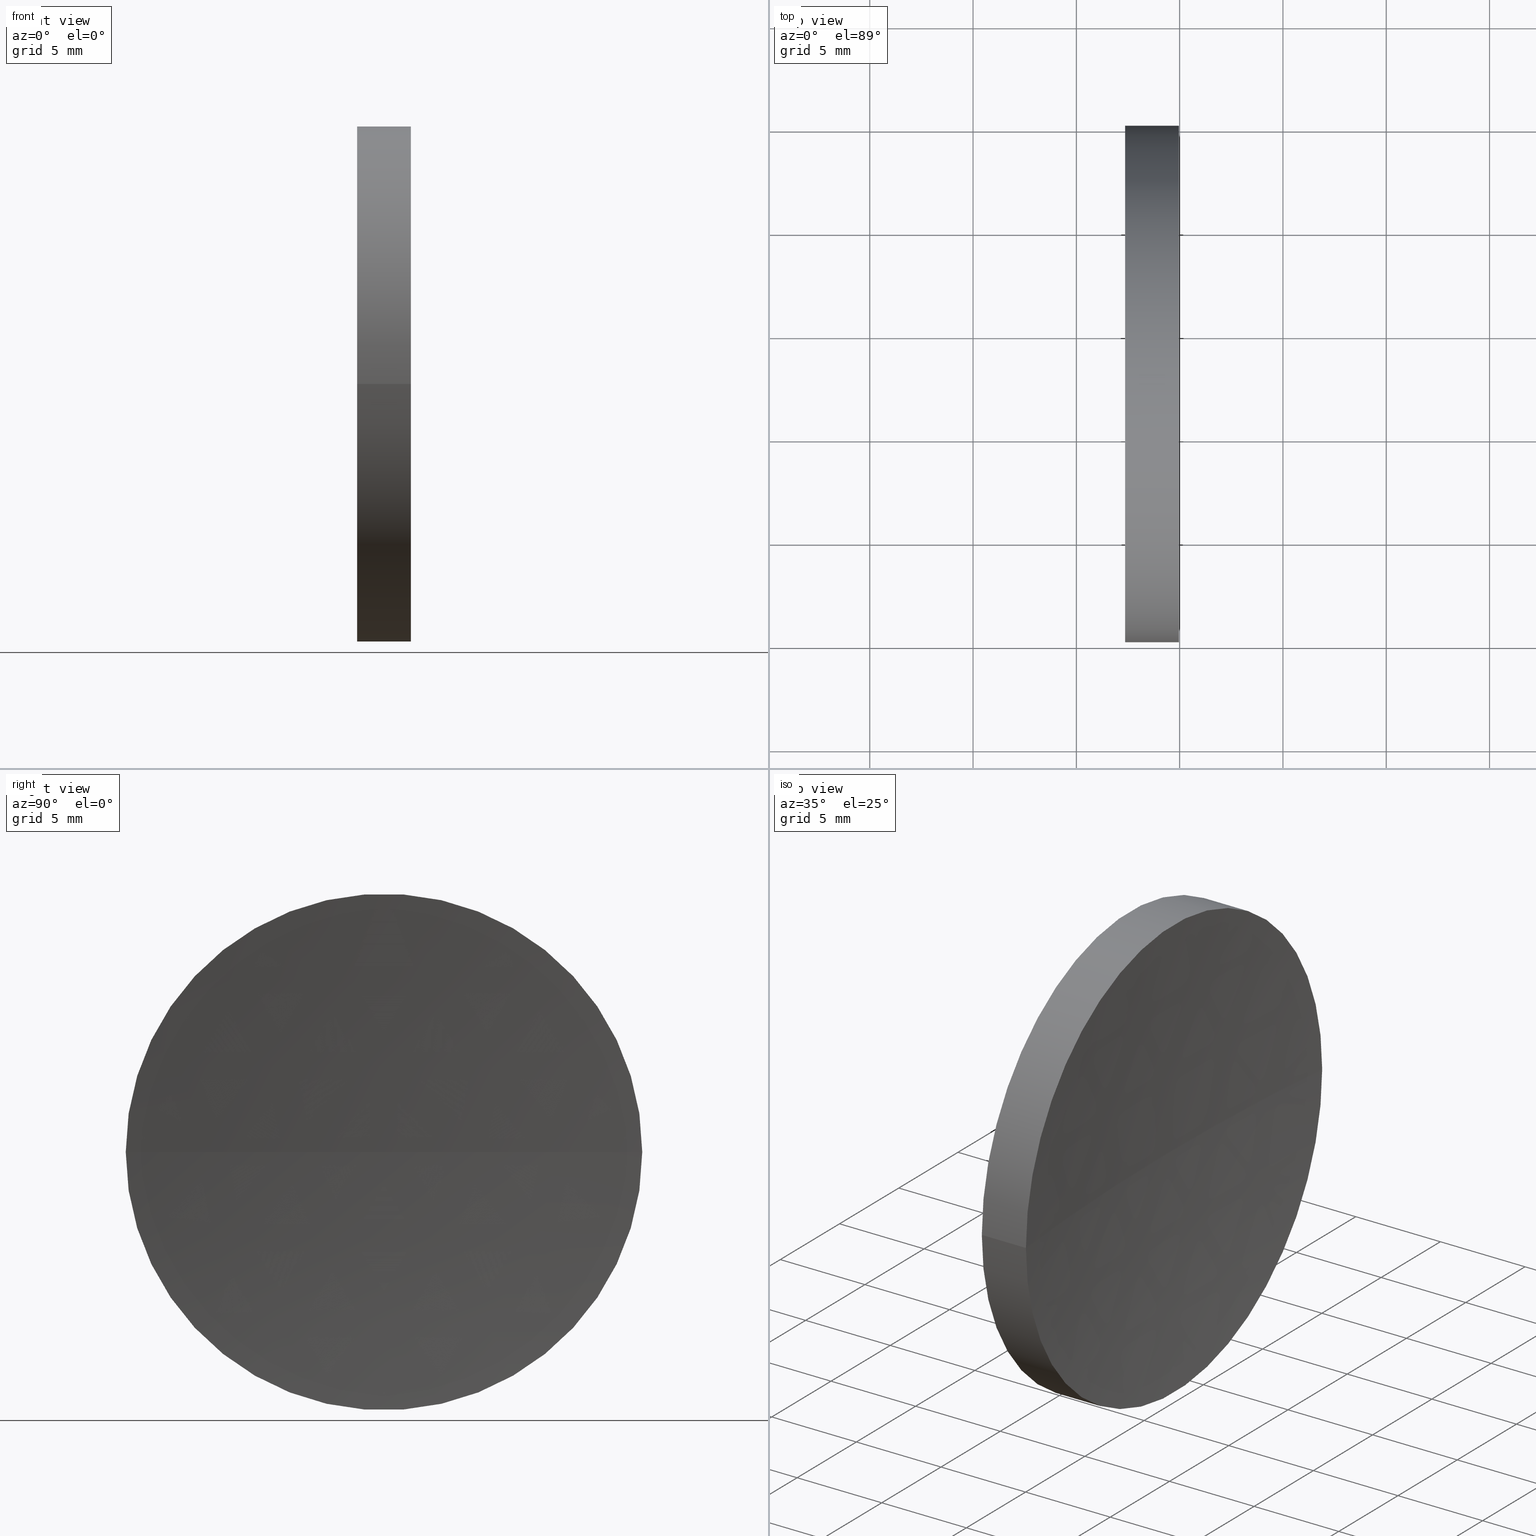
[diagram: canonical four-view strip — front | top / right | iso, engineering-drawing reading convention]
A machine part, canonical four-view strip (front | top / right | iso — engineering-drawing reading convention). The complete STEP part file that produces these views, byte-faithful:
ISO-10303-21;
HEADER;
FILE_DESCRIPTION (( 'STEP AP214' ),
    '1' );
FILE_NAME ('120159.STEP',
    '2019-06-20T07:46:00',
    ( '' ),
    ( '' ),
    'SwSTEP 2.0',
    'SolidWorks 2016',
    '' );
FILE_SCHEMA (( 'AUTOMOTIVE_DESIGN' ));
ENDSEC;

DATA;
#1 = ORIENTED_EDGE ( 'NONE', *, *, #129, .T. ) ;
#2 = APPLICATION_CONTEXT ( 'automotive_design' ) ;
#3 = CIRCLE ( 'NONE', #102, 129.1300000000000200 ) ;
#4 = DIRECTION ( 'NONE',  ( 1.000000000000000000, -7.636108817321419600E-016, 0.0000000000000000000 ) ) ;
#5 =( GEOMETRIC_REPRESENTATION_CONTEXT ( 3 ) GLOBAL_UNCERTAINTY_ASSIGNED_CONTEXT ( ( #85 ) ) GLOBAL_UNIT_ASSIGNED_CONTEXT ( ( #147, #136, #159 ) ) REPRESENTATION_CONTEXT ( 'NONE', 'WORKASPACE' ) );
#6 = DIRECTION ( 'NONE',  ( 7.636108817321419600E-016, 1.000000000000000000, 0.0000000000000000000 ) ) ;
#7 = DIRECTION ( 'NONE',  ( -5.551115123125782700E-016, -1.000000000000000000, 0.0000000000000000000 ) ) ;
#8 = ORIENTED_EDGE ( 'NONE', *, *, #110, .T. ) ;
#9 =( GEOMETRIC_REPRESENTATION_CONTEXT ( 3 ) GLOBAL_UNCERTAINTY_ASSIGNED_CONTEXT ( ( #64 ) ) GLOBAL_UNIT_ASSIGNED_CONTEXT ( ( #29, #127, #43 ) ) REPRESENTATION_CONTEXT ( 'NONE', 'WORKASPACE' ) );
#10 = VERTEX_POINT ( 'NONE', #50 ) ;
#11 = EDGE_LOOP ( 'NONE', ( #144, #137, #73, #92 ) ) ;
#12 = ADVANCED_BREP_SHAPE_REPRESENTATION ( '120159', ( #45, #139 ), #9 ) ;
#13 = EDGE_LOOP ( 'NONE', ( #113, #8 ) ) ;
#14 = EDGE_CURVE ( 'NONE', #10, #23, #54, .T. ) ;
#15 = DIRECTION ( 'NONE',  ( -1.000000000000000000, 7.636108817321419600E-016, -0.0000000000000000000 ) ) ;
#16 = FILL_AREA_STYLE_COLOUR ( '', #97 ) ;
#17 = AXIS2_PLACEMENT_3D ( 'NONE', #62, #158, #135 ) ;
#18 = CARTESIAN_POINT ( 'NONE',  ( 57.35819015802111700, 45.07872591329309100, 1.530808498934191900E-015 ) ) ;
#19 = CARTESIAN_POINT ( 'NONE',  ( 188.4881902802917500, 32.57872685537726200, 0.0000000000000000000 ) ) ;
#20 = COLOUR_RGB ( '',1.000000000000000000, 1.000000000000000000, 1.000000000000000000 ) ;
#21 =( LENGTH_UNIT ( ) NAMED_UNIT ( * ) SI_UNIT ( .MILLI., .METRE. ) );
#22 = SURFACE_STYLE_USAGE ( .BOTH. , #122 ) ;
#23 = VERTEX_POINT ( 'NONE', #33 ) ;
#24 = SPHERICAL_SURFACE ( 'NONE', #93, 129.1300000000000200 ) ;
#25 = CYLINDRICAL_SURFACE ( 'NONE', #91, 12.50000000000000000 ) ;
#26 = EDGE_LOOP ( 'NONE', ( #46, #161, #142 ) ) ;
#27 = PRODUCT_DEFINITION_FORMATION_WITH_SPECIFIED_SOURCE ( '�κ�', '', #57, .NOT_KNOWN. ) ;
#28 = EDGE_CURVE ( 'NONE', #23, #41, #80, .T. ) ;
#29 =( LENGTH_UNIT ( ) NAMED_UNIT ( * ) SI_UNIT ( .MILLI., .METRE. ) );
#30 = CIRCLE ( 'NONE', #17, 12.49999999999999600 ) ;
#31 = SURFACE_SIDE_STYLE ('',( #58 ) ) ;
#32 = CARTESIAN_POINT ( 'NONE',  ( 57.35819015802111000, 32.57872591329309800, 0.0000000000000000000 ) ) ;
#33 = CARTESIAN_POINT ( 'NONE',  ( 57.35819015802110200, 20.07872591329309800, 0.0000000000000000000 ) ) ;
#34 = DIRECTION ( 'NONE',  ( -5.551115123125782700E-016, -1.000000000000000000, 0.0000000000000000000 ) ) ;
#35 = ORIENTED_EDGE ( 'NONE', *, *, #42, .T. ) ;
#36 = STYLED_ITEM ( 'NONE', ( #72 ), #12 ) ;
#37 = EDGE_CURVE ( 'NONE', #149, #10, #95, .T. ) ;
#38 = ADVANCED_FACE ( 'NONE', ( #60 ), #24, .F. ) ;
#39 = FACE_OUTER_BOUND ( 'NONE', #13, .T. ) ;
#40 = ORIENTED_EDGE ( 'NONE', *, *, #14, .F. ) ;
#41 = VERTEX_POINT ( 'NONE', #18 ) ;
#42 = EDGE_CURVE ( 'NONE', #10, #149, #101, .T. ) ;
#43 =( NAMED_UNIT ( * ) SI_UNIT ( $, .STERADIAN. ) SOLID_ANGLE_UNIT ( ) );
#44 = APPLICATION_PROTOCOL_DEFINITION ( 'draft international standard', 'automotive_design', 1998, #156 ) ;
#45 = MANIFOLD_SOLID_BREP ( '��ת1', #143 ) ;
#46 = ORIENTED_EDGE ( 'NONE', *, *, #37, .F. ) ;
#47 = ORIENTED_EDGE ( 'NONE', *, *, #114, .F. ) ;
#48 = DIRECTION ( 'NONE',  ( -8.597715671224009600E-016, -1.000000000000000000, 0.0000000000000000000 ) ) ;
#49 = AXIS2_PLACEMENT_3D ( 'NONE', #79, #51, #7 ) ;
#50 = CARTESIAN_POINT ( 'NONE',  ( 59.96462464522185300, 20.07872685537733700, 0.0000000000000000000 ) ) ;
#51 = DIRECTION ( 'NONE',  ( -1.000000000000000000, 7.636108817321419600E-016, -0.0000000000000000000 ) ) ;
#52 = CARTESIAN_POINT ( 'NONE',  ( 55.00739462442118100, 32.57872591329309800, 0.0000000000000000000 ) ) ;
#53 = DIRECTION ( 'NONE',  ( -1.000000000000000000, 7.636108817321419600E-016, -0.0000000000000000000 ) ) ;
#54 = LINE ( 'NONE', #98, #106 ) ;
#55 = EDGE_CURVE ( 'NONE', #149, #41, #83, .T. ) ;
#56 = PRODUCT_RELATED_PRODUCT_CATEGORY ( 'part', '', ( #57 ) ) ;
#57 = PRODUCT ( '120159', '120159', '', ( #103 ) ) ;
#58 = SURFACE_STYLE_FILL_AREA ( #65 ) ;
#59 = CARTESIAN_POINT ( 'NONE',  ( 59.96462464522185300, 45.07872591329312000, 1.530808383562146000E-015 ) ) ;
#60 = FACE_OUTER_BOUND ( 'NONE', #87, .T. ) ;
#61 = APPLICATION_PROTOCOL_DEFINITION ( 'draft international standard', 'automotive_design', 1998, #2 ) ;
#62 = CARTESIAN_POINT ( 'NONE',  ( 57.35819015802111000, 32.57872591329309800, 0.0000000000000000000 ) ) ;
#63 = PRODUCT_DEFINITION ( 'δ֪', '', #27, #155 ) ;
#64 = UNCERTAINTY_MEASURE_WITH_UNIT (LENGTH_MEASURE( 1.000000000000000100E-005 ), #29, 'distance_accuracy_value', 'NONE');
#65 = FILL_AREA_STYLE ('',( #16 ) ) ;
#66 = PRODUCT_DEFINITION_SHAPE ( 'NONE', 'NONE',  #63 ) ;
#67 = DIRECTION ( 'NONE',  ( -1.000000000000000000, 7.636108817321419600E-016, -0.0000000000000000000 ) ) ;
#68 = CIRCLE ( 'NONE', #84, 129.1300000000000200 ) ;
#69 = DIRECTION ( 'NONE',  ( -1.000000000000000000, 7.636108817321419600E-016, -0.0000000000000000000 ) ) ;
#70 = ORIENTED_EDGE ( 'NONE', *, *, #28, .F. ) ;
#71 = AXIS2_PLACEMENT_3D ( 'NONE', #77, #4, #6 ) ;
#72 = PRESENTATION_STYLE_ASSIGNMENT (( #117 ) ) ;
#73 = ORIENTED_EDGE ( 'NONE', *, *, #14, .T. ) ;
#74 = AXIS2_PLACEMENT_3D ( 'NONE', #163, #69, #140 ) ;
#75 = FACE_OUTER_BOUND ( 'NONE', #26, .T. ) ;
#76 = CARTESIAN_POINT ( 'NONE',  ( 188.4881902802917500, 32.57872685537726200, 0.0000000000000000000 ) ) ;
#77 = CARTESIAN_POINT ( 'NONE',  ( 57.35819015802111000, 32.57872591329309100, 0.0000000000000000000 ) ) ;
#78 = AXIS2_PLACEMENT_3D ( 'NONE', #52, #164, #34 ) ;
#79 = CARTESIAN_POINT ( 'NONE',  ( 59.96462464522186800, 32.57872591329309100, 0.0000000000000000000 ) ) ;
#80 = CIRCLE ( 'NONE', #151, 12.49999999999999600 ) ;
#81 = CARTESIAN_POINT ( 'NONE',  ( 188.4881902802917500, 32.57872685537726200, 0.0000000000000000000 ) ) ;
#82 = PRESENTATION_LAYER_ASSIGNMENT (  '', '', ( #134 ) ) ;
#83 = LINE ( 'NONE', #150, #112 ) ;
#84 = AXIS2_PLACEMENT_3D ( 'NONE', #76, #157, #146 ) ;
#85 = UNCERTAINTY_MEASURE_WITH_UNIT (LENGTH_MEASURE( 1.000000000000000100E-005 ), #147, 'distance_accuracy_value', 'NONE');
#86 = EDGE_LOOP ( 'NONE', ( #35, #120, #70, #40 ) ) ;
#87 = EDGE_LOOP ( 'NONE', ( #47, #162, #1 ) ) ;
#88 = ADVANCED_FACE ( 'NONE', ( #75 ), #165, .F. ) ;
#89 =( GEOMETRIC_REPRESENTATION_CONTEXT ( 3 ) GLOBAL_UNCERTAINTY_ASSIGNED_CONTEXT ( ( #125 ) ) GLOBAL_UNIT_ASSIGNED_CONTEXT ( ( #21, #121, #141 ) ) REPRESENTATION_CONTEXT ( 'NONE', 'WORKASPACE' ) );
#90 = SHAPE_DEFINITION_REPRESENTATION ( #66, #12 ) ;
#91 = AXIS2_PLACEMENT_3D ( 'NONE', #145, #15, #116 ) ;
#92 = ORIENTED_EDGE ( 'NONE', *, *, #110, .F. ) ;
#93 = AXIS2_PLACEMENT_3D ( 'NONE', #19, #109, #48 ) ;
#94 = CARTESIAN_POINT ( 'NONE',  ( 188.4881902802917500, 32.57872685537726200, 0.0000000000000000000 ) ) ;
#95 = CIRCLE ( 'NONE', #49, 12.50000000000000000 ) ;
#96 = DIRECTION ( 'NONE',  ( -5.551115123125784700E-016, -1.000000000000000000, 0.0000000000000000000 ) ) ;
#97 = COLOUR_RGB ( '',1.000000000000000000, 1.000000000000000000, 1.000000000000000000 ) ;
#98 = CARTESIAN_POINT ( 'NONE',  ( 55.00739462442117400, 20.07872591329309500, 0.0000000000000000000 ) ) ;
#99 = FILL_AREA_STYLE ('',( #148 ) ) ;
#100 = ADVANCED_FACE ( 'NONE', ( #132 ), #111, .T. ) ;
#101 = CIRCLE ( 'NONE', #74, 12.50000000000000000 ) ;
#102 = AXIS2_PLACEMENT_3D ( 'NONE', #94, #138, #115 ) ;
#103 = PRODUCT_CONTEXT ( 'NONE', #156, 'mechanical' ) ;
#104 = PLANE ( 'NONE',  #71 ) ;
#105 = FACE_OUTER_BOUND ( 'NONE', #11, .T. ) ;
#106 = VECTOR ( 'NONE', #119, 1000.000000000000000 ) ;
#107 = DIRECTION ( 'NONE',  ( 0.0000000000000000000, 0.0000000000000000000, 1.000000000000000000 ) ) ;
#108 = AXIS2_PLACEMENT_3D ( 'NONE', #81, #131, #152 ) ;
#109 = DIRECTION ( 'NONE',  ( 0.0000000000000000000, 0.0000000000000000000, 1.000000000000000000 ) ) ;
#110 = EDGE_CURVE ( 'NONE', #41, #23, #30, .T. ) ;
#111 = CYLINDRICAL_SURFACE ( 'NONE', #78, 12.50000000000000000 ) ;
#112 = VECTOR ( 'NONE', #53, 1000.000000000000000 ) ;
#113 = ORIENTED_EDGE ( 'NONE', *, *, #28, .T. ) ;
#114 = EDGE_CURVE ( 'NONE', #149, #123, #68, .T. ) ;
#115 = DIRECTION ( 'NONE',  ( -1.000000000000000000, 0.0000000000000000000, 0.0000000000000000000 ) ) ;
#116 = DIRECTION ( 'NONE',  ( -5.551115123125782700E-016, -1.000000000000000000, 0.0000000000000000000 ) ) ;
#117 = SURFACE_STYLE_USAGE ( .BOTH. , #31 ) ;
#118 = CARTESIAN_POINT ( 'NONE',  ( 59.35819028029170900, 32.57872685537735400, 0.0000000000000000000 ) ) ;
#119 = DIRECTION ( 'NONE',  ( -1.000000000000000000, 7.636108817321419600E-016, -0.0000000000000000000 ) ) ;
#120 = ORIENTED_EDGE ( 'NONE', *, *, #55, .T. ) ;
#121 =( NAMED_UNIT ( * ) PLANE_ANGLE_UNIT ( ) SI_UNIT ( $, .RADIAN. ) );
#122 = SURFACE_SIDE_STYLE ('',( #130 ) ) ;
#123 = VERTEX_POINT ( 'NONE', #118 ) ;
#124 = ADVANCED_FACE ( 'NONE', ( #39 ), #104, .F. ) ;
#125 = UNCERTAINTY_MEASURE_WITH_UNIT (LENGTH_MEASURE( 1.000000000000000100E-005 ), #21, 'distance_accuracy_value', 'NONE');
#126 = PRESENTATION_STYLE_ASSIGNMENT (( #22 ) ) ;
#127 =( NAMED_UNIT ( * ) PLANE_ANGLE_UNIT ( ) SI_UNIT ( $, .RADIAN. ) );
#128 = CARTESIAN_POINT ( 'NONE',  ( 0.0000000000000000000, 0.0000000000000000000, 0.0000000000000000000 ) ) ;
#129 = EDGE_CURVE ( 'NONE', #10, #123, #3, .T. ) ;
#130 = SURFACE_STYLE_FILL_AREA ( #99 ) ;
#131 = DIRECTION ( 'NONE',  ( 0.0000000000000000000, 0.0000000000000000000, 1.000000000000000000 ) ) ;
#132 = FACE_OUTER_BOUND ( 'NONE', #86, .T. ) ;
#133 = DIRECTION ( 'NONE',  ( 1.000000000000000000, 0.0000000000000000000, 0.0000000000000000000 ) ) ;
#134 = STYLED_ITEM ( 'NONE', ( #126 ), #45 ) ;
#135 = DIRECTION ( 'NONE',  ( -5.551115123125784700E-016, -1.000000000000000000, 0.0000000000000000000 ) ) ;
#136 =( NAMED_UNIT ( * ) PLANE_ANGLE_UNIT ( ) SI_UNIT ( $, .RADIAN. ) );
#137 = ORIENTED_EDGE ( 'NONE', *, *, #37, .T. ) ;
#138 = DIRECTION ( 'NONE',  ( 0.0000000000000000000, -0.0000000000000000000, -1.000000000000000000 ) ) ;
#139 = AXIS2_PLACEMENT_3D ( 'NONE', #128, #107, #133 ) ;
#140 = DIRECTION ( 'NONE',  ( -5.551115123125782700E-016, -1.000000000000000000, 0.0000000000000000000 ) ) ;
#141 =( NAMED_UNIT ( * ) SI_UNIT ( $, .STERADIAN. ) SOLID_ANGLE_UNIT ( ) );
#142 = ORIENTED_EDGE ( 'NONE', *, *, #129, .F. ) ;
#143 = CLOSED_SHELL ( 'NONE', ( #100, #88, #38, #154, #124 ) ) ;
#144 = ORIENTED_EDGE ( 'NONE', *, *, #55, .F. ) ;
#145 = CARTESIAN_POINT ( 'NONE',  ( 55.00739462442118100, 32.57872591329309800, 0.0000000000000000000 ) ) ;
#146 = DIRECTION ( 'NONE',  ( 0.0000000000000000000, -1.000000000000000000, -1.224646799147353200E-016 ) ) ;
#147 =( LENGTH_UNIT ( ) NAMED_UNIT ( * ) SI_UNIT ( .MILLI., .METRE. ) );
#148 = FILL_AREA_STYLE_COLOUR ( '', #20 ) ;
#149 = VERTEX_POINT ( 'NONE', #59 ) ;
#150 = CARTESIAN_POINT ( 'NONE',  ( 55.00739462442118800, 45.07872591329309100, 1.530808498934191500E-015 ) ) ;
#151 = AXIS2_PLACEMENT_3D ( 'NONE', #32, #67, #96 ) ;
#152 = DIRECTION ( 'NONE',  ( -8.597715671224009600E-016, -1.000000000000000000, 0.0000000000000000000 ) ) ;
#153 = MECHANICAL_DESIGN_GEOMETRIC_PRESENTATION_REPRESENTATION (  '', ( #36 ), #5 ) ;
#154 = ADVANCED_FACE ( 'NONE', ( #105 ), #25, .T. ) ;
#155 = PRODUCT_DEFINITION_CONTEXT ( 'detailed design', #2, 'design' ) ;
#156 = APPLICATION_CONTEXT ( 'automotive_design' ) ;
#157 = DIRECTION ( 'NONE',  ( -9.351536221073556900E-032, -1.224646799147353200E-016, 1.000000000000000000 ) ) ;
#158 = DIRECTION ( 'NONE',  ( -1.000000000000000000, 7.636108817321419600E-016, -0.0000000000000000000 ) ) ;
#159 =( NAMED_UNIT ( * ) SI_UNIT ( $, .STERADIAN. ) SOLID_ANGLE_UNIT ( ) );
#160 = PRESENTATION_LAYER_ASSIGNMENT (  '', '', ( #36 ) ) ;
#161 = ORIENTED_EDGE ( 'NONE', *, *, #114, .T. ) ;
#162 = ORIENTED_EDGE ( 'NONE', *, *, #42, .F. ) ;
#163 = CARTESIAN_POINT ( 'NONE',  ( 59.96462464522186800, 32.57872591329309100, 0.0000000000000000000 ) ) ;
#164 = DIRECTION ( 'NONE',  ( -1.000000000000000000, 7.636108817321419600E-016, -0.0000000000000000000 ) ) ;
#165 = SPHERICAL_SURFACE ( 'NONE', #108, 129.1300000000000200 ) ;
#166 = MECHANICAL_DESIGN_GEOMETRIC_PRESENTATION_REPRESENTATION (  '', ( #134 ), #89 ) ;
ENDSEC;
END-ISO-10303-21;
